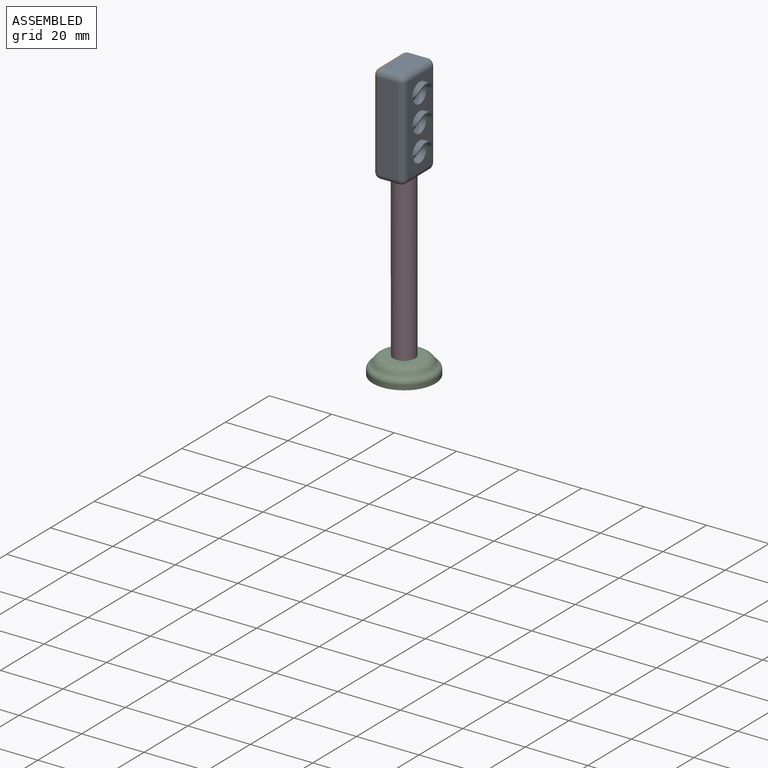
[diagram: assembled view]
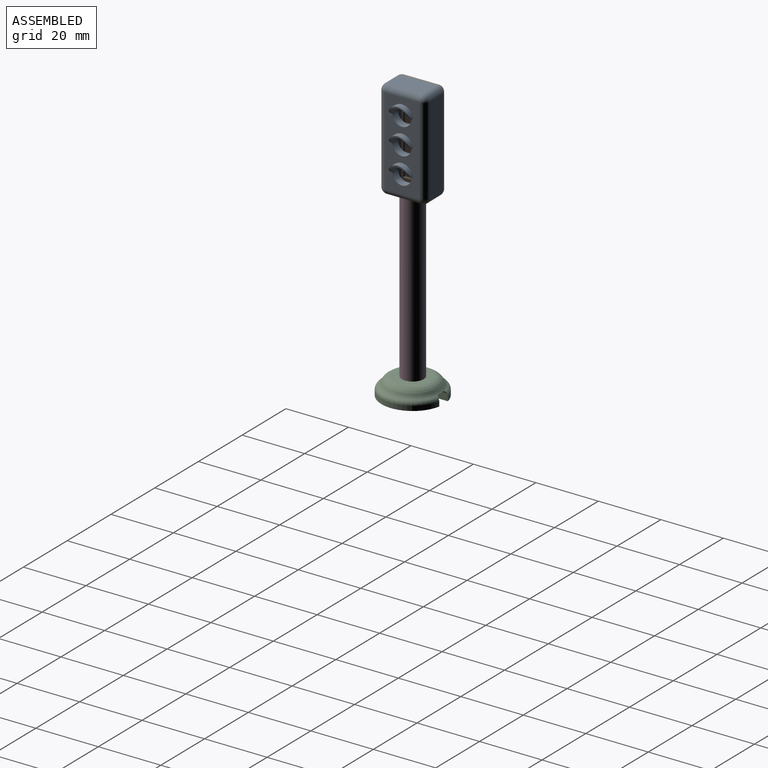
[diagram: assembled view, second angle]
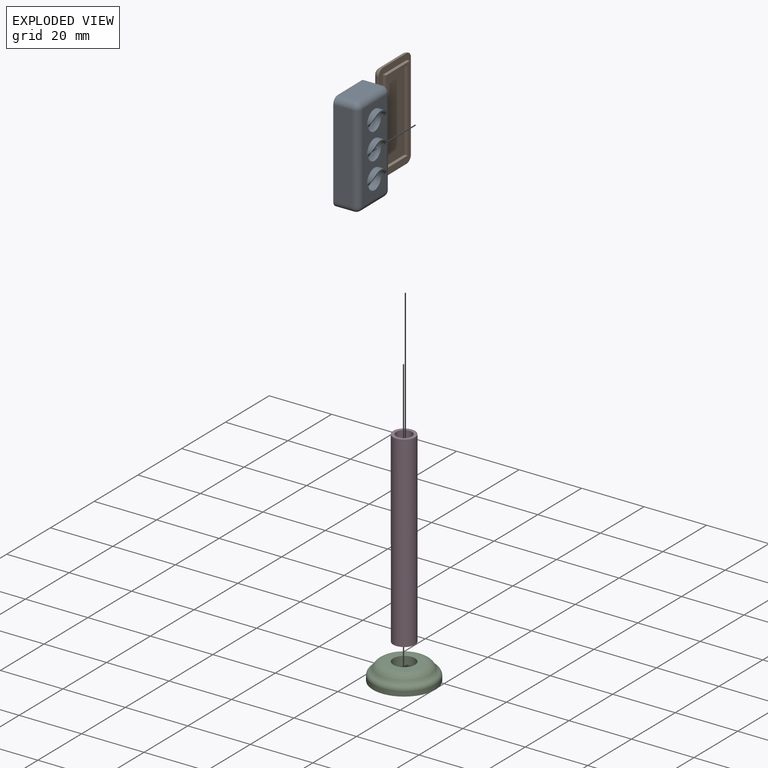
[diagram: exploded view]
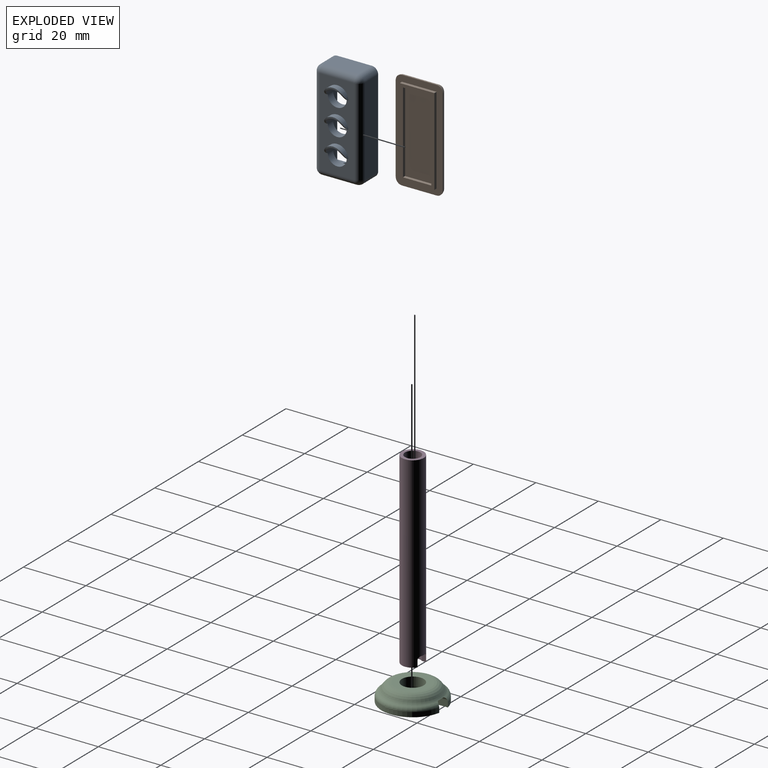
[diagram: exploded view, second angle]
ASSEMBLY  parts=4 mates=3
PART A: 43 faces, bbox 15x10x32 mm
  f0: plane 28x4.5mm, normal (1,0,0), area 126mm2, adj f16,f17,f31,f39
  f1: plane 28x4.5mm, normal (-1,0,0), area 126mm2, adj f4,f16,f31,f42
  f2: cylinder r=3.5mm len=7mm, axis (0,0,-1), area 36.3mm2, adj f4,f5,f6,f12,f17,f21,f38
  f3: plane 28x11mm, normal (0,-1,0), area 207.9mm2, adj f9,f11,f12,f18,f19,f20,f22,f24
  f4: plane 5.5x3.7mm, normal (0,0,1), area 11.1mm2, adj f1,f2,f16,f38,f40,f42
  f5: plane 6x3.7mm, normal (0,0,-1), area 15mm2, adj f2,f12,f13,f38
  f6: plane 6x3.7mm, normal (0,0,-1), area 15mm2, adj f2,f12,f15,f38
  f7: plane 28x6mm, normal (-1,0,0), area 168mm2, adj f11,f15,f33,f38
  f8: plane 28x6mm, normal (1,0,0), area 168mm2, adj f9,f13,f36,f38
  f9: cylinder r=2mm len=28mm, axis (0,0,1), area 88mm2, adj f3,f8,f10,f37
  f10: sphere r=2mm, area 6.3mm2, adj f9,f12,f13
  f11: cylinder r=2mm len=28mm, axis (0,0,-1), area 88mm2, adj f3,f7,f14,f34
  f12: cylinder r=2mm len=11mm, axis (1,0,0), area 33.3mm2, adj f2,f3,f5,f6,f10,f14
  f13: cylinder r=2mm len=6mm, axis (0,1,0), area 18.8mm2, adj f5,f8,f10,f38
  f14: sphere r=2mm, area 6.3mm2, adj f11,f12,f15
  f15: cylinder r=2mm len=6mm, axis (0,-1,0), area 18.8mm2, adj f6,f7,f14,f38
  f16: plane 28x10mm, normal (0,1,0), area 195.2mm2, adj f0,f1,f4,f17,f18,f19,f20,f21
  f17: plane 5.5x3.7mm, normal (0,0,1), area 11.1mm2, adj f0,f2,f16,f38,f39,f41
  f18: cylinder r=3mm len=6mm, axis (0,-1,0), area 61.5mm2, adj f3,f16,f28
  f19: cylinder r=3mm len=6mm, axis (0,-1,0), area 61.5mm2, adj f3,f16,f30
  f20: cylinder r=3mm len=6mm, axis (0,-1,0), area 61.5mm2, adj f3,f16,f29
  f21: plane 4.9x1mm, normal (0,0,-1), area 3.4mm2, adj f2,f16
  f22: cylinder r=3.5mm len=7mm, axis (0,1,0), area 17.7mm2, adj f3,f23,f29
  f23: plane 1x0.04mm, normal (0,-1,0), area 0mm2, adj f22,f29
  f24: cylinder r=3.5mm len=7mm, axis (0,1,0), area 17.7mm2, adj f3,f25,f28
  f25: plane 1x0.04mm, normal (0,-1,0), area 0mm2, adj f24,f28
  f26: cylinder r=3.5mm len=7mm, axis (0,1,0), area 17.7mm2, adj f3,f27,f30
  f27: plane 1x0.04mm, normal (0,-1,0), area 0mm2, adj f26,f30
  f28: cylinder r=4mm len=7mm, axis (-1,0,0), area 5.8mm2, adj f3,f18,f24,f25
  f29: cylinder r=4mm len=7mm, axis (-1,0,0), area 5.8mm2, adj f3,f20,f22,f23
  f30: cylinder r=4mm len=7mm, axis (-1,0,0), area 5.8mm2, adj f3,f19,f26,f27
  f31: plane 11x5.5mm, normal (0,0,-1), area 56mm2, adj f0,f1,f16,f38,f39,f40,f41,f42
  f32: plane 11x6mm, normal (0,0,1), area 66mm2, adj f33,f35,f36,f38
  f33: cylinder r=2mm len=6mm, axis (0,1,0), area 18.8mm2, adj f7,f32,f34,f38
  f34: sphere r=2mm, area 6.3mm2, adj f11,f33,f35
  f35: cylinder r=2mm len=11mm, axis (-1,0,0), area 34.6mm2, adj f3,f32,f34,f37
  f36: cylinder r=2mm len=6mm, axis (0,-1,0), area 18.8mm2, adj f8,f32,f37,f38
  f37: sphere r=2mm, area 6.3mm2, adj f9,f35,f36
  f38: plane 32x15mm, normal (0,1,0), area 161.4mm2, adj f2,f4,f5,f6,f7,f8,f13,f15
  f39: plane 28x0.5mm, normal (0,1,0), area 14mm2, adj f0,f17,f31,f41
  f40: plane 28x1mm, normal (-1,0,0), area 28mm2, adj f4,f31,f38,f42
  f41: plane 28x1mm, normal (1,0,0), area 28mm2, adj f17,f31,f38,f39
  f42: plane 28x0.5mm, normal (0,1,0), area 14mm2, adj f1,f4,f31,f40
PART B: 20 faces, bbox 3x15x32 mm
  f0: plane 28x11mm, normal (1,0,0), area 308mm2, adj f3,f4,f7,f8
  f1: plane 32x15mm, normal (-1,0,0), area 168.6mm2, adj f2,f3,f4,f5,f6,f7,f8,f9
  f2: sphere r=2mm, area 6.3mm2, adj f1,f3,f4
  f3: cylinder r=2mm len=28mm, axis (0,0,-1), area 88mm2, adj f0,f1,f2,f5
  f4: cylinder r=2mm len=11mm, axis (0,-1,0), area 34.6mm2, adj f0,f1,f2,f6
  f5: sphere r=2mm, area 6.3mm2, adj f1,f3,f7
  f6: sphere r=2mm, area 6.3mm2, adj f1,f4,f8
  f7: cylinder r=2mm len=11mm, axis (0,1,0), area 34.6mm2, adj f0,f1,f5,f9
  f8: cylinder r=2mm len=28mm, axis (0,0,1), area 88mm2, adj f0,f1,f6,f9
  f9: sphere r=2mm, area 6.3mm2, adj f1,f7,f8
  f10: plane 11x1mm, normal (0,0,-1), area 11mm2, adj f1,f11,f17,f18
  f11: plane 28x1mm, normal (0,-1,0), area 28mm2, adj f1,f10,f12,f18
  f12: plane 11x1mm, normal (0,0,1), area 11mm2, adj f1,f11,f17,f18
  f13: plane 26x1mm, normal (0,1,0), area 26mm2, adj f14,f16,f18,f19
  f14: plane 9x1mm, normal (0,0,1), area 9mm2, adj f13,f15,f18,f19
  f15: plane 26x1mm, normal (0,-1,0), area 26mm2, adj f14,f16,f18,f19
  f16: plane 9x1mm, normal (0,0,-1), area 9mm2, adj f13,f15,f18,f19
  f17: plane 28x1mm, normal (0,1,0), area 28mm2, adj f1,f10,f12,f18
  f18: plane 28x11mm, normal (-1,0,0), area 74mm2, adj f10,f11,f12,f13,f14,f15,f16,f17
  f19: plane 26x9mm, normal (-1,0,0), area 234mm2, adj f13,f14,f15,f16
PART C: 12 faces, bbox 23.8x23.8x5.5 mm
  f0: cylinder r=10mm len=20mm, axis (0,0,-1), area 88.2mm2, adj f1,f4,f8,f9
  f1: plane 20x19.8mm, normal (0,0,-1), area 249.1mm2, adj f0,f3,f8,f9
  f2: plane 11.33x11.33mm, normal (0,0,1), area 62.3mm2, adj f3,f6
  f3: cylinder r=3.5mm len=7mm, axis (0,0,1), area 108.7mm2, adj f1,f2,f7,f8,f9,f10,f11
  f4: torus R=8.5mm, axis (0,0,1), area 84.7mm2, adj f0,f5,f8,f9,f10,f11
  f5: torus R=11mm, axis (0,0,1), area 82.8mm2, adj f4,f6,f7,f10,f11
  f6: torus R=5.66mm, axis (0,0,-1), area 147.7mm2, adj f2,f5
  f7: plane 5.65x2mm, normal (0,0,-1), area 11.1mm2, adj f3,f5,f10,f11
  f8: plane 6.94x2.01mm, normal (0,-1,0), area 13.8mm2, adj f0,f1,f3,f4,f10
  f9: plane 6.94x2.01mm, normal (0,1,0), area 13.8mm2, adj f0,f1,f3,f4,f11
  f10: cylinder r=1mm len=6.84mm, axis (1,0,0), area 9.7mm2, adj f3,f4,f5,f7,f8
  f11: cylinder r=1mm len=6.84mm, axis (-1,0,0), area 9.7mm2, adj f3,f4,f5,f7,f9
PART D: 9 faces, bbox 7x7x60 mm
  f0: cylinder r=3.5mm len=60mm, axis (0,0,-1), area 1307.2mm2, adj f1,f2,f4,f5,f6,f7,f8
  f1: plane 7x6.37mm, normal (0,0,1), area 14.4mm2, adj f0,f3,f4,f5
  f2: plane 7x7mm, normal (0,0,-1), area 18.8mm2, adj f0,f3
  f3: cylinder r=2.5mm len=60mm, axis (0,0,1), area 929.2mm2, adj f1,f2,f4,f5,f6,f7,f8
  f4: plane 2x1.37mm, normal (1,0,0), area 2.7mm2, adj f0,f1,f3,f7
  f5: plane 2x1.37mm, normal (-1,0,0), area 2.7mm2, adj f0,f1,f3,f8
  f6: plane 2x1.21mm, normal (0,0,1), area 2mm2, adj f0,f3,f7,f8
  f7: cylinder r=1mm len=1.85mm, axis (0,-1,0), area 1.9mm2, adj f0,f3,f4,f6
  f8: cylinder r=1mm len=1.85mm, axis (0,1,0), area 1.9mm2, adj f0,f3,f5,f6
PLACE A rot(axis=(0,0,1),90.5deg) t=(40.54,-16.56,-12.98)mm
PLACE B rot(axis=(0,-1,0),180deg) t=(29.04,17.91,19.02)mm
PLACE C rot(axis=(0,0,-1),89.5deg) t=(20.84,8.63,-70.98)mm
PLACE D rot(axis=(0,-1,0),180deg) t=(-2.01,-7.46,-10.98)mm
MATE fastened A.f42 <-> B.f18  axis (-1,-0.01,0) through (30.03,18.57,3.02)mm
MATE fastened C.f0 <-> D.f0  axis (0,0,-1) through (32.08,13.09,-70.98)mm
MATE fastened D.f0 <-> A.f2  axis (0,0,1) through (32.08,13.09,-10.98)mm
